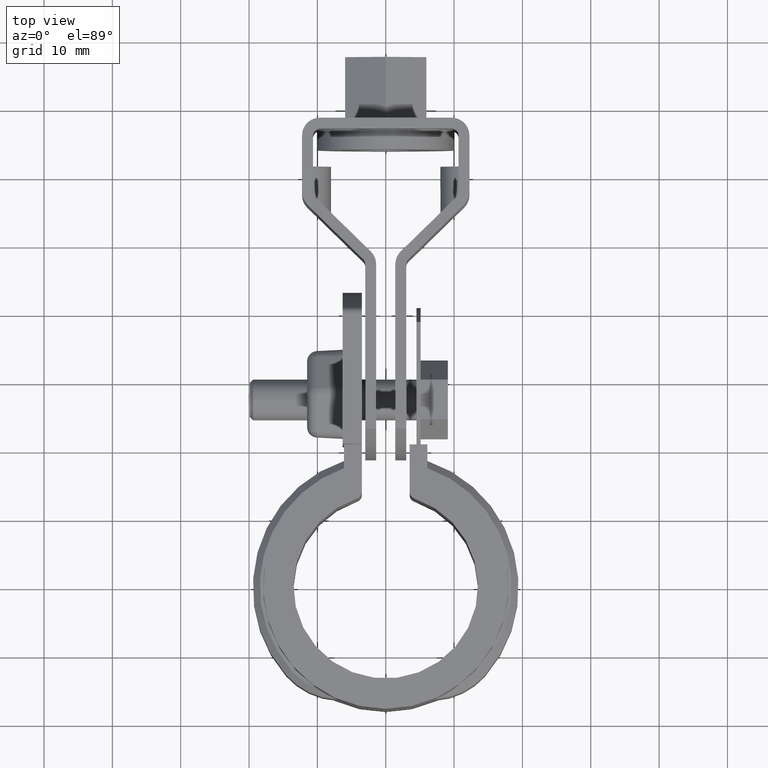
[diagram: clean part render]
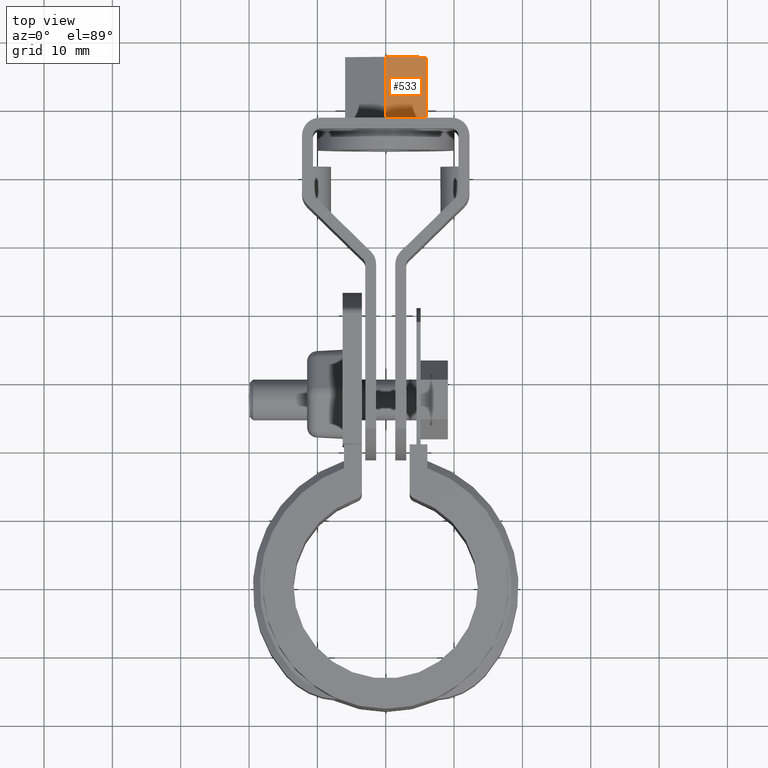
[diagram: same view with one face highlighted and labeled with its STEP entity id]
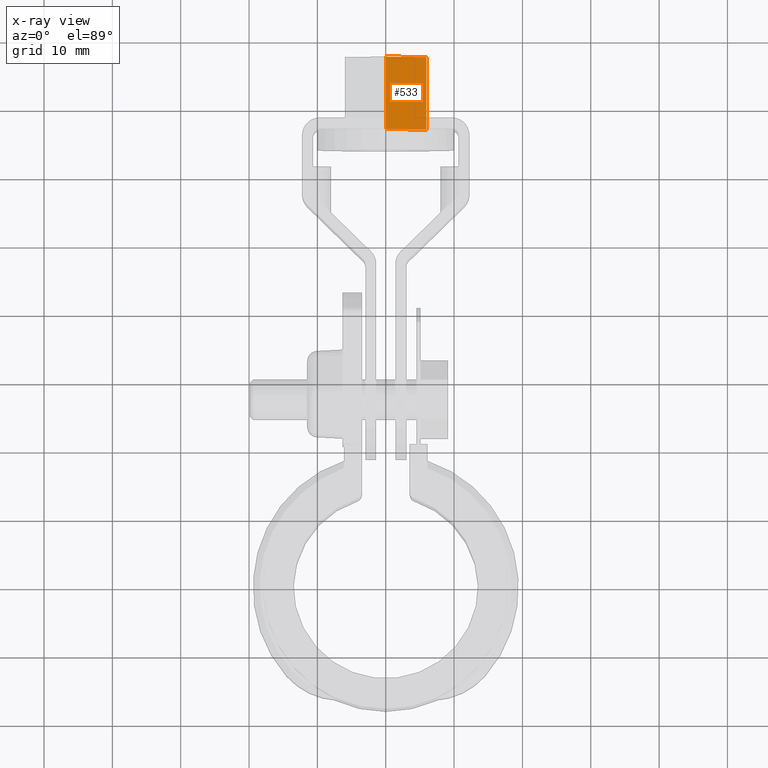
[diagram: x-ray of the same camera — body ghosted, the highlighted face saturated]
A machine part, top view. The second image highlights one B-rep face of the part: STEP entity #533.
The next image is the same camera in x-ray: the body ghosted, the highlighted face saturated — about 0% of this face is hidden behind the body in this view.
In plain terms, the highlighted planar face has unit normal (-0.5, 0, -0.866).
Its self-contained STEP definition (entity closure, byte-faithful):
#533 = ADVANCED_FACE( '', ( #1050 ), #1051, .F. );
#1050 = FACE_OUTER_BOUND( '', #2131, .T. );
#1051 = PLANE( '', #2132 );
#2131 = EDGE_LOOP( '', ( #4690, #4691, #4692, #4693 ) );
#2132 = AXIS2_PLACEMENT_3D( '', #4694, #4695, #4696 );
#4690 = ORIENTED_EDGE( '', *, *, #6451, .T. );
#4691 = ORIENTED_EDGE( '', *, *, #6449, .F. );
#4692 = ORIENTED_EDGE( '', *, *, #6467, .F. );
#4693 = ORIENTED_EDGE( '', *, *, #6465, .T. );
#4694 = CARTESIAN_POINT( '', ( 1.22255569247507E-007, 77.5992907736724, -5.62953177701550 ) );
#4695 = DIRECTION( '', ( -0.499999999966906, 5.11243964307538E-010, -0.866025403803545 ) );
#4696 = DIRECTION( '', ( -0.866025403803545, 6.22564514942461E-010, 0.499999999966906 ) );
#6449 = EDGE_CURVE( '', #7678, #7673, #7680, .T. );
#6451 = EDGE_CURVE( '', #7683, #7673, #7684, .T. );
#6465 = EDGE_CURVE( '', #7707, #7683, #7708, .T. );
#6467 = EDGE_CURVE( '', #7707, #7678, #7710, .T. );
#7673 = VERTEX_POINT( '', #10833 );
#7678 = VERTEX_POINT( '', #10840 );
#7680 = LINE( '', #10843, #10844 );
#7683 = VERTEX_POINT( '', #10847 );
#7684 = LINE( '', #10848, #10849 );
#7707 = VERTEX_POINT( '', #10882 );
#7708 = LINE( '', #10883, #10884 );
#7710 = LINE( '', #10887, #10888 );
#10833 = CARTESIAN_POINT( '', ( 5.95000011396219, 66.9992907693950, -9.06476587985997 ) );
#10840 = CARTESIAN_POINT( '', ( 5.95000012238684, 77.5992907693951, -9.06476587846640 ) );
#10843 = CARTESIAN_POINT( '', ( 5.95000012238684, 77.5992907693951, -9.06476587846640 ) );
#10844 = VECTOR( '', #12578, 1000.00000000000 );
#10847 = CARTESIAN_POINT( '', ( 1.13830909299588E-007, 66.9992907736724, -5.62953177840907 ) );
#10848 = CARTESIAN_POINT( '', ( 1.13830915371120E-007, 66.9992907736724, -5.62953177840907 ) );
#10849 = VECTOR( '', #12582, 1000.00000000000 );
#10882 = CARTESIAN_POINT( '', ( 1.22255563175974E-007, 77.5992907736724, -5.62953177701550 ) );
#10883 = CARTESIAN_POINT( '', ( 1.22255563175974E-007, 77.5992907736724, -5.62953177701550 ) );
#10884 = VECTOR( '', #12602, 1000.00000000000 );
#10887 = CARTESIAN_POINT( '', ( 1.22255569247507E-007, 77.5992907736724, -5.62953177701550 ) );
#10888 = VECTOR( '', #12604, 1000.00000000000 );
#12578 = DIRECTION( '', ( -7.94778667583653E-010, -1.00000000000000, -1.31468003180933E-010 ) );
#12582 = DIRECTION( '', ( 0.866025403803545, -6.22564514942461E-010, -0.499999999966906 ) );
#12602 = DIRECTION( '', ( -7.94778667583653E-010, -1.00000000000000, -1.31468003180933E-010 ) );
#12604 = DIRECTION( '', ( 0.866025403803545, -6.22564514942461E-010, -0.499999999966906 ) );